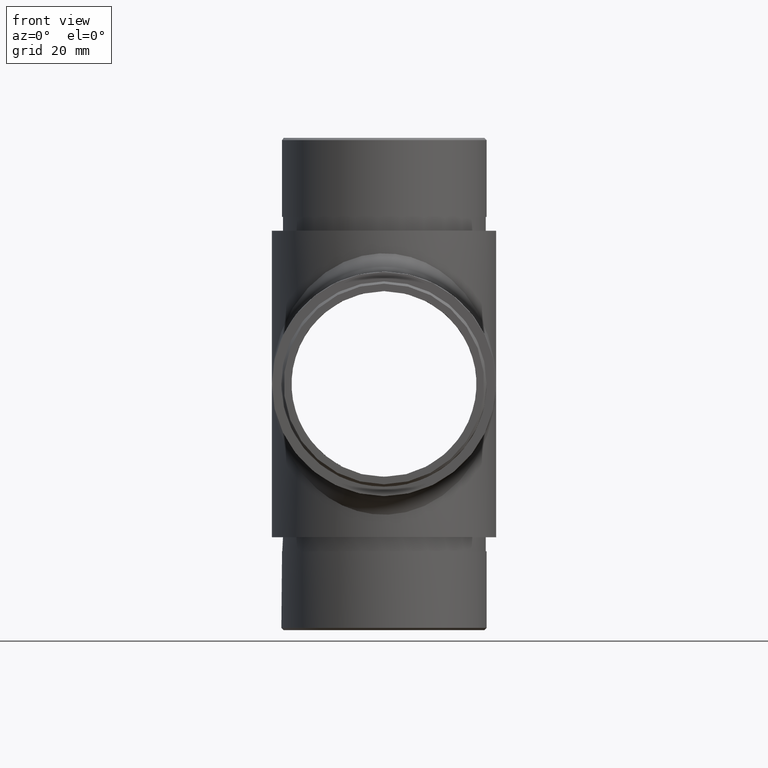
[diagram: clean part render]
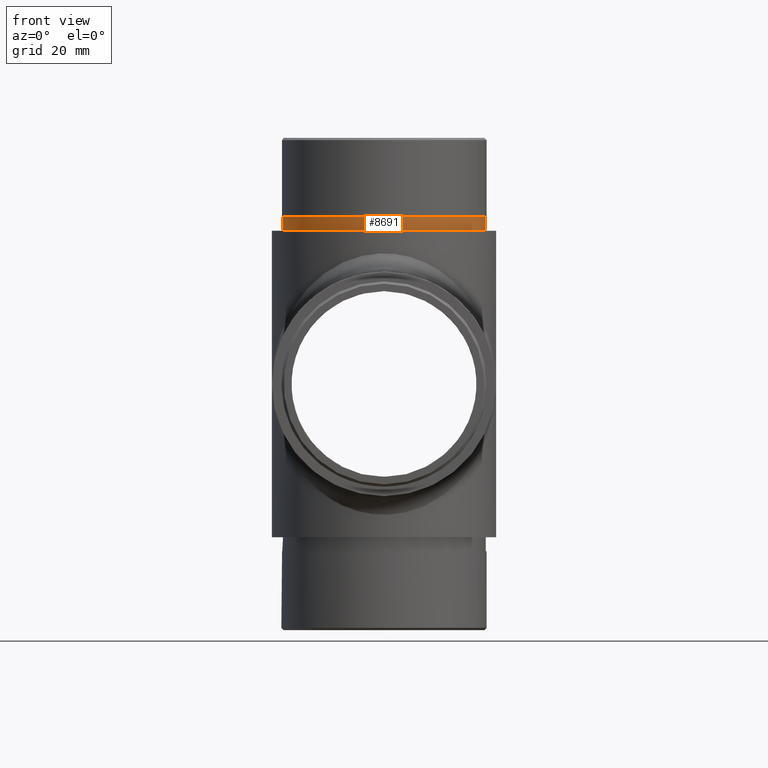
[diagram: same view with one face highlighted and labeled with its STEP entity id]
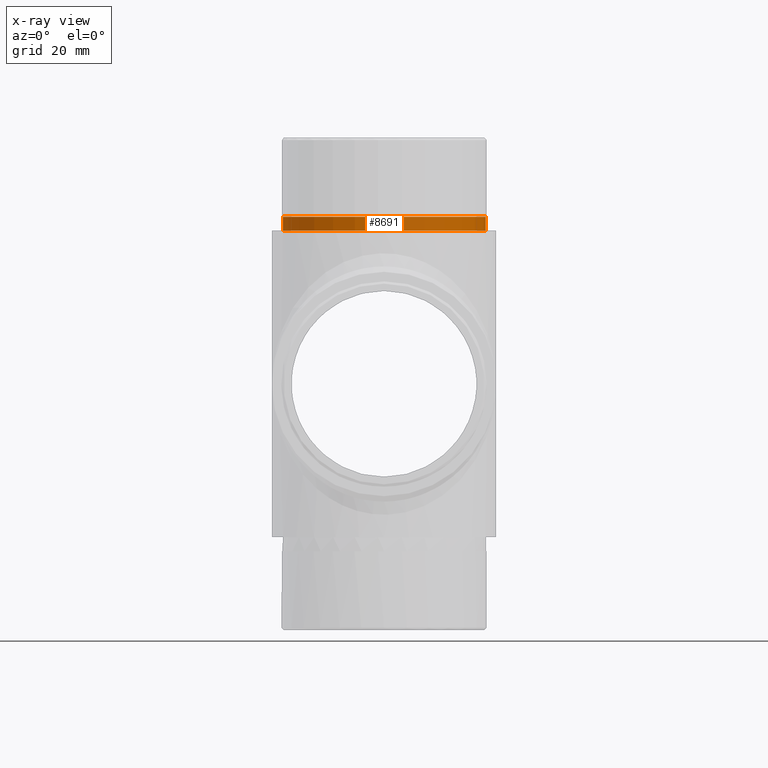
[diagram: x-ray of the same camera — body ghosted, the highlighted face saturated]
A machine part, front view. The second image highlights one B-rep face of the part: STEP entity #8691.
The next image is the same camera in x-ray: the body ghosted, the highlighted face saturated — about 0% of this face is hidden behind the body in this view.
In plain terms, the highlighted cylindrical surface (bore or boss wall) has radius 21.9 mm, axis along (-0, -0, -1).
Its self-contained STEP definition (entity closure, byte-faithful):
#28 = VERTEX_POINT ( 'NONE', #116 ) ;
#116 = CARTESIAN_POINT ( 'NONE',  ( 21.89999999999999900, 0.0000000000000000000, 36.00000000000000700 ) ) ;
#1155 = CIRCLE ( 'NONE', #6216, 21.89999999999999900 ) ;
#1231 = AXIS2_PLACEMENT_3D ( 'NONE', #11379, #4598, #12464 ) ;
#1446 = FACE_OUTER_BOUND ( 'NONE', #8632, .T. ) ;
#2453 = VERTEX_POINT ( 'NONE', #11953 ) ;
#2934 = AXIS2_PLACEMENT_3D ( 'NONE', #5712, #3660, #4918 ) ;
#3660 = DIRECTION ( 'NONE',  ( -0.0000000000000000000, -0.0000000000000000000, -1.000000000000000000 ) ) ;
#3909 = FACE_OUTER_BOUND ( 'NONE', #4849, .T. ) ;
#4598 = DIRECTION ( 'NONE',  ( 0.0000000000000000000, 0.0000000000000000000, 1.000000000000000000 ) ) ;
#4849 = EDGE_LOOP ( 'NONE', ( #6360 ) ) ;
#4918 = DIRECTION ( 'NONE',  ( -1.000000000000000000, 0.0000000000000000000, 0.0000000000000000000 ) ) ;
#5568 = CIRCLE ( 'NONE', #1231, 21.89999999999999900 ) ;
#5712 = CARTESIAN_POINT ( 'NONE',  ( 0.0000000000000000000, 0.0000000000000000000, 36.00000000000000700 ) ) ;
#6216 = AXIS2_PLACEMENT_3D ( 'NONE', #11622, #7828, #10788 ) ;
#6360 = ORIENTED_EDGE ( 'NONE', *, *, #8801, .F. ) ;
#6957 = CYLINDRICAL_SURFACE ( 'NONE', #2934, 21.89999999999999900 ) ;
#7389 = ORIENTED_EDGE ( 'NONE', *, *, #8705, .T. ) ;
#7828 = DIRECTION ( 'NONE',  ( 0.0000000000000000000, 0.0000000000000000000, 1.000000000000000000 ) ) ;
#8632 = EDGE_LOOP ( 'NONE', ( #7389 ) ) ;
#8691 = ADVANCED_FACE ( 'NONE', ( #3909, #1446 ), #6957, .T. ) ;
#8705 = EDGE_CURVE ( 'NONE', #2453, #2453, #1155, .T. ) ;
#8801 = EDGE_CURVE ( 'NONE', #28, #28, #5568, .T. ) ;
#10788 = DIRECTION ( 'NONE',  ( 1.000000000000000000, 0.0000000000000000000, 0.0000000000000000000 ) ) ;
#11379 = CARTESIAN_POINT ( 'NONE',  ( 0.0000000000000000000, 0.0000000000000000000, 36.00000000000000700 ) ) ;
#11622 = CARTESIAN_POINT ( 'NONE',  ( 0.0000000000000000000, 0.0000000000000000000, 33.00000000000000000 ) ) ;
#11953 = CARTESIAN_POINT ( 'NONE',  ( 21.89999999999999900, 0.0000000000000000000, 33.00000000000000000 ) ) ;
#12464 = DIRECTION ( 'NONE',  ( 1.000000000000000000, 0.0000000000000000000, 0.0000000000000000000 ) ) ;